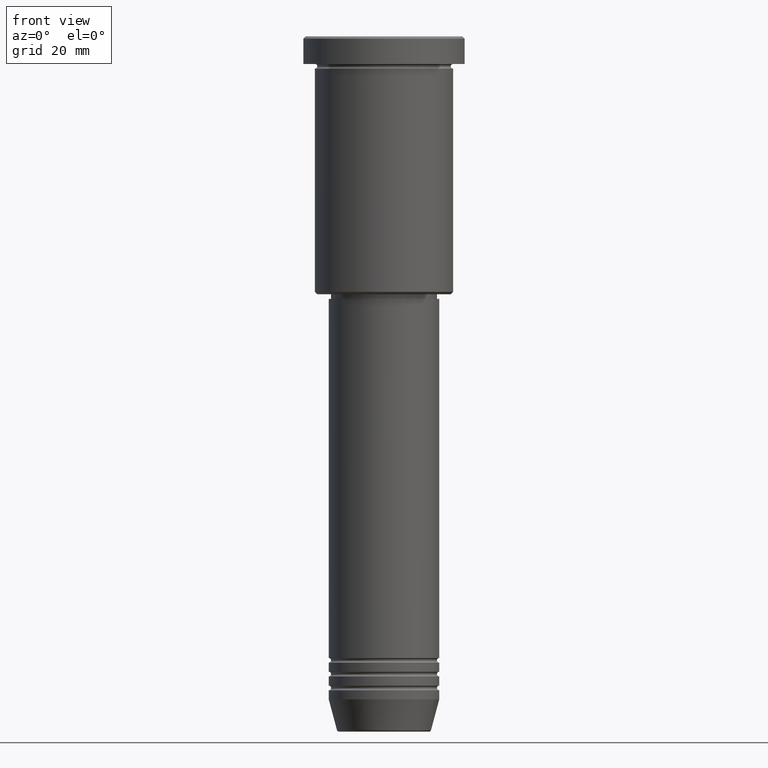
[diagram: clean part render]
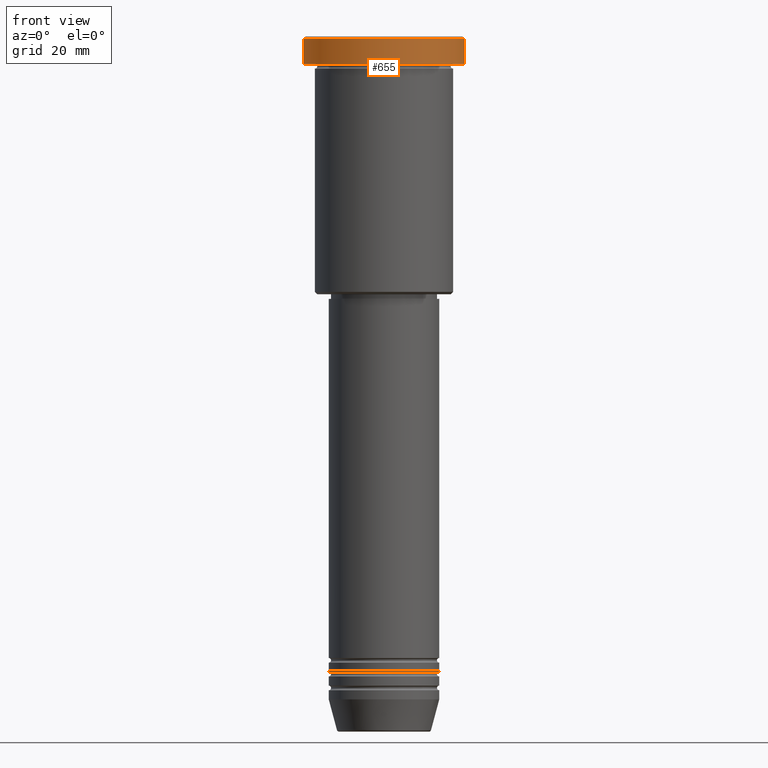
[diagram: same view with one face highlighted and labeled with its STEP entity id]
A machine part, front view. The second image highlights one B-rep face of the part: STEP entity #655.
In plain terms, the highlighted cylindrical surface (partial cylindrical patch) has radius 17.5 mm, axis along (-0, -0, 1).
Its self-contained STEP definition (entity closure, byte-faithful):
#46 = CYLINDRICAL_SURFACE ( 'NONE', #1112, 17.50000000000000000 ) ;
#57 = EDGE_LOOP ( 'NONE', ( #273, #144, #1074, #587 ) ) ;
#58 = VERTEX_POINT ( 'NONE', #753 ) ;
#61 = AXIS2_PLACEMENT_3D ( 'NONE', #502, #1136, #152 ) ;
#140 = DIRECTION ( 'NONE',  ( 0.000000000000000000, 0.000000000000000000, -1.000000000000000000 ) ) ;
#144 = ORIENTED_EDGE ( 'NONE', *, *, #304, .T. ) ;
#152 = DIRECTION ( 'NONE',  ( 1.000000000000000000, 0.000000000000000000, 0.000000000000000000 ) ) ;
#226 = CARTESIAN_POINT ( 'NONE',  ( 0.000000000000000000, 0.000000000000000000, -0.4999999999999865663 ) ) ;
#242 = CARTESIAN_POINT ( 'NONE',  ( 17.50000000000000000, 0.000000000000000000, -0.4999999999999865663 ) ) ;
#273 = ORIENTED_EDGE ( 'NONE', *, *, #669, .F. ) ;
#304 = EDGE_CURVE ( 'NONE', #58, #971, #1148, .T. ) ;
#323 = DIRECTION ( 'NONE',  ( -0.000000000000000000, -0.000000000000000000, 1.000000000000000000 ) ) ;
#360 = VERTEX_POINT ( 'NONE', #452 ) ;
#397 = LINE ( 'NONE', #411, #538 ) ;
#407 = DIRECTION ( 'NONE',  ( -0.000000000000000000, -0.000000000000000000, 1.000000000000000000 ) ) ;
#411 = CARTESIAN_POINT ( 'NONE',  ( -17.50000000000000000, 2.143131898507868248E-15, 0.000000000000000000 ) ) ;
#452 = CARTESIAN_POINT ( 'NONE',  ( -17.50000000000000000, 2.143131898507868248E-15, -0.4999999999999865663 ) ) ;
#502 = CARTESIAN_POINT ( 'NONE',  ( 0.000000000000000000, 0.000000000000000000, -5.999999999999995559 ) ) ;
#538 = VECTOR ( 'NONE', #598, 1000.000000000000000 ) ;
#587 = ORIENTED_EDGE ( 'NONE', *, *, #606, .T. ) ;
#598 = DIRECTION ( 'NONE',  ( -0.000000000000000000, -0.000000000000000000, 1.000000000000000000 ) ) ;
#606 = EDGE_CURVE ( 'NONE', #653, #360, #919, .T. ) ;
#614 = AXIS2_PLACEMENT_3D ( 'NONE', #226, #140, #674 ) ;
#653 = VERTEX_POINT ( 'NONE', #242 ) ;
#655 = ADVANCED_FACE ( 'NONE', ( #1038 ), #46, .T. ) ;
#665 = DIRECTION ( 'NONE',  ( 1.000000000000000000, 0.000000000000000000, 0.000000000000000000 ) ) ;
#669 = EDGE_CURVE ( 'NONE', #58, #360, #397, .T. ) ;
#674 = DIRECTION ( 'NONE',  ( 1.000000000000000000, 0.000000000000000000, 0.000000000000000000 ) ) ;
#690 = EDGE_CURVE ( 'NONE', #971, #653, #1134, .T. ) ;
#707 = VECTOR ( 'NONE', #407, 1000.000000000000000 ) ;
#753 = CARTESIAN_POINT ( 'NONE',  ( -17.50000000000000000, 2.143131898507868248E-15, -5.999999999999995559 ) ) ;
#762 = CARTESIAN_POINT ( 'NONE',  ( 0.000000000000000000, 0.000000000000000000, 0.000000000000000000 ) ) ;
#873 = CARTESIAN_POINT ( 'NONE',  ( 17.50000000000000000, 0.000000000000000000, 0.000000000000000000 ) ) ;
#919 = CIRCLE ( 'NONE', #614, 17.50000000000000000 ) ;
#971 = VERTEX_POINT ( 'NONE', #1154 ) ;
#1038 = FACE_OUTER_BOUND ( 'NONE', #57, .T. ) ;
#1074 = ORIENTED_EDGE ( 'NONE', *, *, #690, .T. ) ;
#1112 = AXIS2_PLACEMENT_3D ( 'NONE', #762, #323, #665 ) ;
#1134 = LINE ( 'NONE', #873, #707 ) ;
#1136 = DIRECTION ( 'NONE',  ( -0.000000000000000000, -0.000000000000000000, 1.000000000000000000 ) ) ;
#1148 = CIRCLE ( 'NONE', #61, 17.50000000000000000 ) ;
#1154 = CARTESIAN_POINT ( 'NONE',  ( 17.50000000000000000, 0.000000000000000000, -5.999999999999995559 ) ) ;